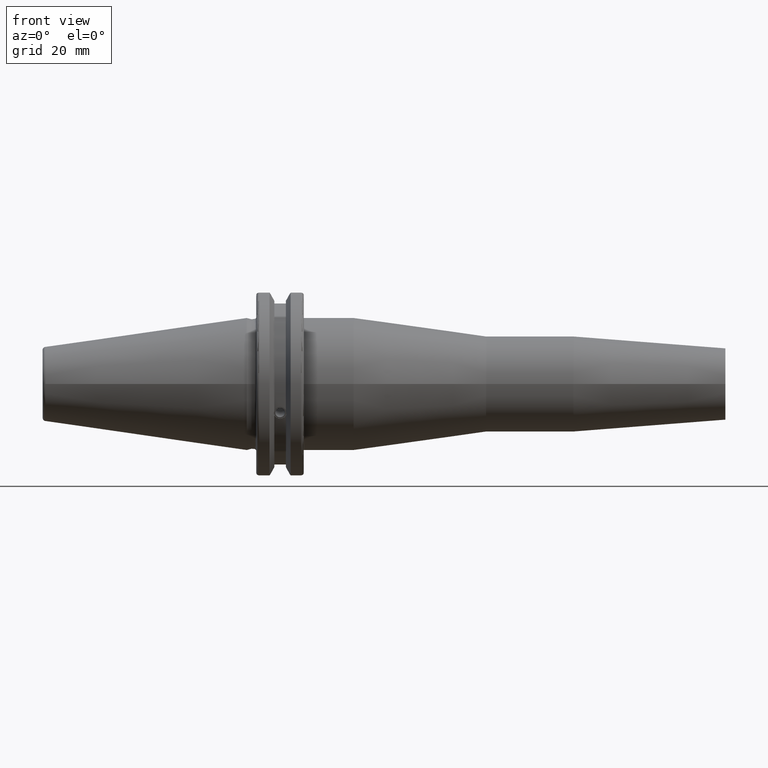
[diagram: clean part render]
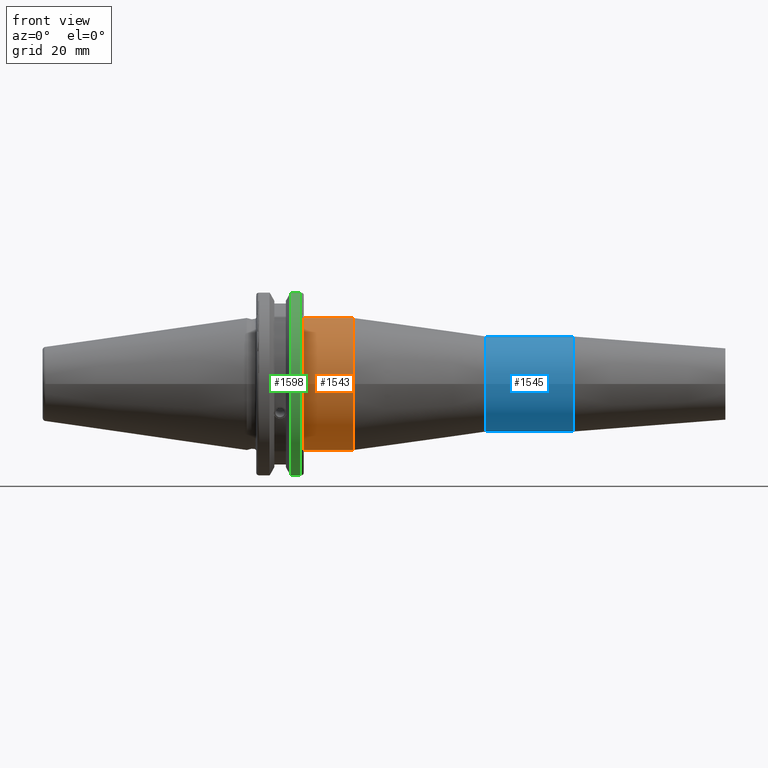
[diagram: same view with three faces highlighted in distinct colors, each labeled with its STEP entity id]
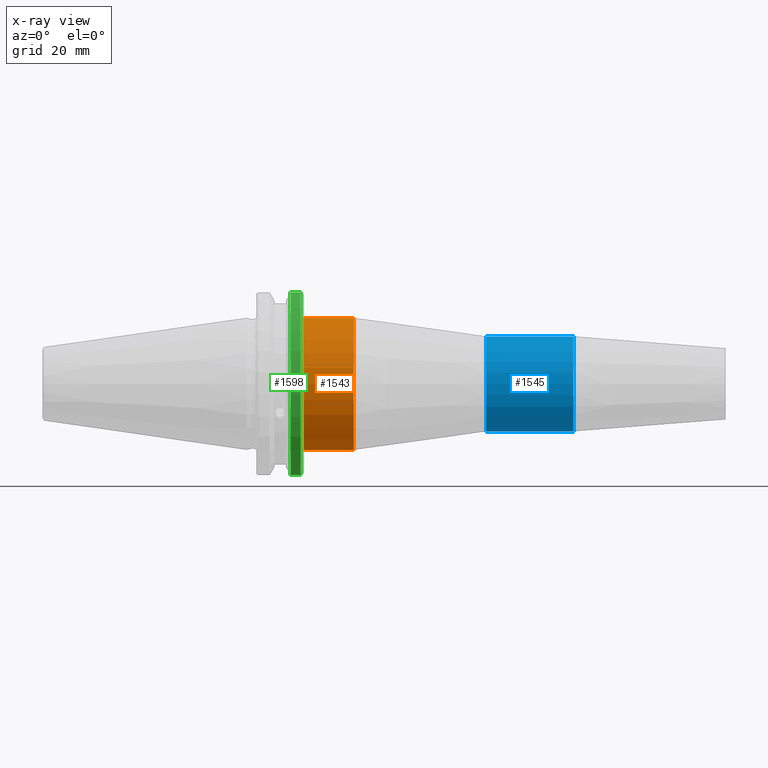
[diagram: x-ray of the same camera — body ghosted, the three highlighted faces saturated]
A machine part, front view with three faces highlighted in distinct colors.
The next image is the same camera in x-ray (body ghosted, the three faces saturated) — at least one of them is partly hidden behind the body in this view.
Their STEP definitions:

[orange] entity #1543 — the highlighted cylindrical surface (bore or boss wall) has radius 22.225 mm, axis along (1, 0, 0).
#149=CYLINDRICAL_SURFACE('',#1674,22.225);
#189=FACE_OUTER_BOUND('',#287,.T.);
#287=EDGE_LOOP('',(#1098,#1099,#1100,#1101));
#386=LINE('',#2434,#486);
#486=VECTOR('',#1906,22.225);
#589=CIRCLE('',#1675,22.225);
#590=CIRCLE('',#1676,22.225);
#668=VERTEX_POINT('',#2431);
#669=VERTEX_POINT('',#2433);
#834=EDGE_CURVE('',#668,#668,#589,.T.);
#835=EDGE_CURVE('',#668,#669,#386,.T.);
#836=EDGE_CURVE('',#669,#669,#590,.T.);
#1098=ORIENTED_EDGE('',*,*,#834,.F.);
#1099=ORIENTED_EDGE('',*,*,#835,.T.);
#1100=ORIENTED_EDGE('',*,*,#836,.F.);
#1101=ORIENTED_EDGE('',*,*,#835,.F.);
#1543=ADVANCED_FACE('',(#189),#149,.T.);
#1674=AXIS2_PLACEMENT_3D('',#2430,#1902,#1903);
#1675=AXIS2_PLACEMENT_3D('',#2432,#1904,#1905);
#1676=AXIS2_PLACEMENT_3D('',#2435,#1907,#1908);
#1902=DIRECTION('center_axis',(1.,0.,0.));
#1903=DIRECTION('ref_axis',(0.,1.,0.));
#1904=DIRECTION('center_axis',(1.,0.,0.));
#1905=DIRECTION('ref_axis',(0.,0.,-1.));
#1906=DIRECTION('',(-1.,0.,0.));
#1907=DIRECTION('center_axis',(-1.,0.,0.));
#1908=DIRECTION('ref_axis',(0.,1.,0.));
#2430=CARTESIAN_POINT('Origin',(27.3784117390792,0.,0.));
#2431=CARTESIAN_POINT('',(35.7068234781583,-22.225,-2.72177751110499E-15));
#2432=CARTESIAN_POINT('Origin',(35.7068234781583,0.,0.));
#2433=CARTESIAN_POINT('',(19.05,-22.225,-2.72177751110499E-15));
#2434=CARTESIAN_POINT('',(27.3784117390792,-22.225,-2.72177751110499E-15));
#2435=CARTESIAN_POINT('Origin',(19.05,0.,0.));

[blue] entity #1545 — the highlighted cylindrical surface (bore or boss wall) has radius 16 mm, axis along (1, 0, 0).
#150=CYLINDRICAL_SURFACE('',#1679,16.);
#191=FACE_OUTER_BOUND('',#289,.T.);
#289=EDGE_LOOP('',(#1106,#1107,#1108,#1109));
#388=LINE('',#2441,#488);
#488=VECTOR('',#1916,16.);
#588=CIRCLE('',#1672,16.);
#591=CIRCLE('',#1678,16.);
#667=VERTEX_POINT('',#2426);
#670=VERTEX_POINT('',#2437);
#833=EDGE_CURVE('',#667,#667,#588,.T.);
#837=EDGE_CURVE('',#670,#670,#591,.T.);
#839=EDGE_CURVE('',#667,#670,#388,.T.);
#1106=ORIENTED_EDGE('',*,*,#833,.F.);
#1107=ORIENTED_EDGE('',*,*,#839,.T.);
#1108=ORIENTED_EDGE('',*,*,#837,.T.);
#1109=ORIENTED_EDGE('',*,*,#839,.F.);
#1545=ADVANCED_FACE('',(#191),#150,.T.);
#1672=AXIS2_PLACEMENT_3D('',#2428,#1898,#1899);
#1678=AXIS2_PLACEMENT_3D('',#2438,#1911,#1912);
#1679=AXIS2_PLACEMENT_3D('',#2440,#1914,#1915);
#1898=DIRECTION('center_axis',(1.,0.,0.));
#1899=DIRECTION('ref_axis',(0.,0.,-1.));
#1911=DIRECTION('center_axis',(1.,0.,0.));
#1912=DIRECTION('ref_axis',(0.,0.,-1.));
#1914=DIRECTION('center_axis',(1.,0.,0.));
#1915=DIRECTION('ref_axis',(0.,1.,0.));
#1916=DIRECTION('',(-1.,0.,0.));
#2426=CARTESIAN_POINT('',(109.175181055301,-16.,-1.95943487863577E-15));
#2428=CARTESIAN_POINT('Origin',(109.175181055301,0.,0.));
#2437=CARTESIAN_POINT('',(80.,-16.,-1.95943487863577E-15));
#2438=CARTESIAN_POINT('Origin',(80.,0.,0.));
#2440=CARTESIAN_POINT('Origin',(94.5875905276507,0.,0.));
#2441=CARTESIAN_POINT('',(94.5875905276507,-16.,-1.95943487863577E-15));

[green] entity #1598 — the highlighted cylindrical surface (partial cylindrical patch) has radius 31.75 mm, axis along (1, 0, 0).
#167=CYLINDRICAL_SURFACE('',#1792,31.75);
#244=FACE_OUTER_BOUND('',#351,.T.);
#351=EDGE_LOOP('',(#1421,#1422,#1423,#1424));
#465=LINE('',#3029,#565);
#466=LINE('',#3031,#566);
#565=VECTOR('',#2217,10.);
#566=VECTOR('',#2220,10.);
#598=CIRCLE('',#1705,31.75);
#624=CIRCLE('',#1764,31.75);
#695=VERTEX_POINT('',#2564);
#696=VERTEX_POINT('',#2568);
#770=VERTEX_POINT('',#2872);
#771=VERTEX_POINT('',#2881);
#873=EDGE_CURVE('',#696,#695,#598,.T.);
#971=EDGE_CURVE('',#770,#771,#624,.T.);
#1017=EDGE_CURVE('',#771,#695,#465,.T.);
#1018=EDGE_CURVE('',#696,#770,#466,.T.);
#1421=ORIENTED_EDGE('',*,*,#971,.F.);
#1422=ORIENTED_EDGE('',*,*,#1018,.F.);
#1423=ORIENTED_EDGE('',*,*,#873,.T.);
#1424=ORIENTED_EDGE('',*,*,#1017,.F.);
#1598=ADVANCED_FACE('',(#244),#167,.T.);
#1705=AXIS2_PLACEMENT_3D('',#2569,#1978,#1979);
#1764=AXIS2_PLACEMENT_3D('',#2882,#2138,#2139);
#1792=AXIS2_PLACEMENT_3D('',#3030,#2218,#2219);
#1978=DIRECTION('center_axis',(1.,0.,0.));
#1979=DIRECTION('ref_axis',(0.,0.,-1.));
#2138=DIRECTION('center_axis',(1.,0.,0.));
#2139=DIRECTION('ref_axis',(0.,-1.,1.60812264967664E-16));
#2217=DIRECTION('',(-1.,0.,0.));
#2218=DIRECTION('center_axis',(1.,0.,0.));
#2219=DIRECTION('ref_axis',(0.,-1.,1.22464679914735E-16));
#2220=DIRECTION('',(1.,0.,0.));
#2564=CARTESIAN_POINT('',(14.6602667690756,-8.67204822802686,-30.5427254764662));
#2568=CARTESIAN_POINT('',(14.6602667690756,-8.67204822802685,30.5427254764662));
#2569=CARTESIAN_POINT('Origin',(14.6602667690756,0.,0.));
#2872=CARTESIAN_POINT('',(18.05,-8.67204822802685,30.5427254764662));
#2881=CARTESIAN_POINT('',(18.05,-8.67204822802686,-30.5427254764662));
#2882=CARTESIAN_POINT('Origin',(18.05,0.,0.));
#3029=CARTESIAN_POINT('',(16.8551333845378,-8.67204822802686,-30.5427254764662));
#3030=CARTESIAN_POINT('Origin',(16.8551333845378,0.,0.));
#3031=CARTESIAN_POINT('',(16.8551333845378,-8.67204822802685,30.5427254764662));